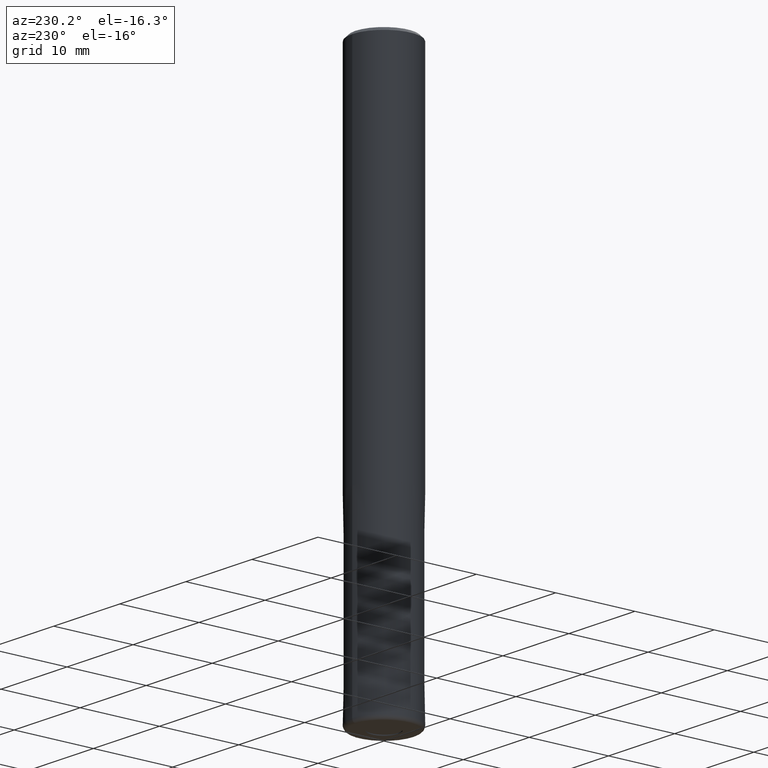
[diagram: clean part render]
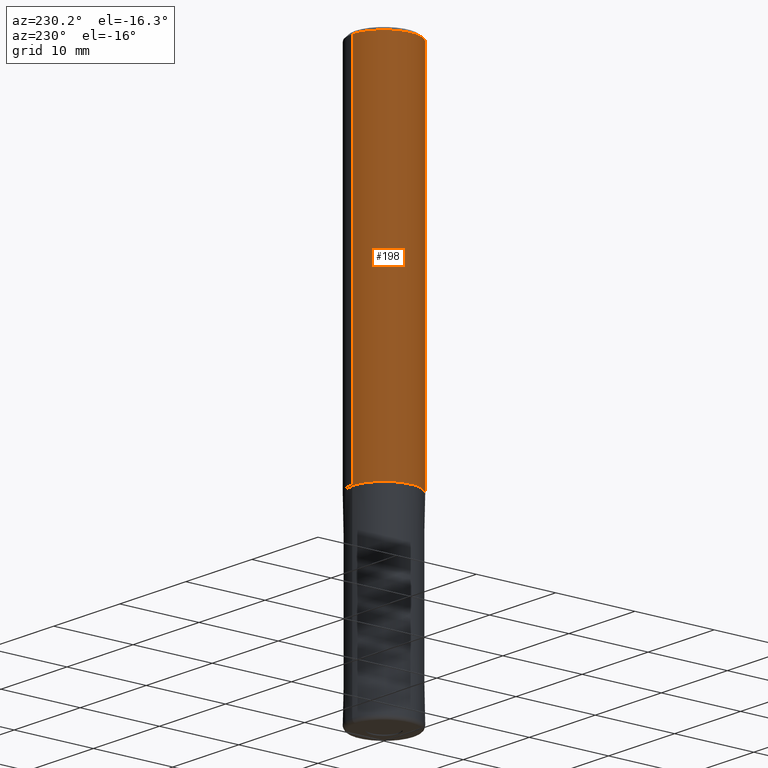
[diagram: same view with one face highlighted and labeled with its STEP entity id]
A machine part, auxiliary view. The second image highlights one B-rep face of the part: STEP entity #198.
In plain terms, the highlighted cylindrical surface (partial cylindrical patch) has radius 4 mm, axis along (-0, -0, 1).
Its self-contained STEP definition (entity closure, byte-faithful):
#106=VERTEX_POINT('',#267);
#120=VERTEX_POINT('',#283);
#134=EDGE_CURVE('',#170,#150,#300,.T.);
#136=EDGE_CURVE('',#106,#170,#302,.T.);
#150=VERTEX_POINT('',#318);
#152=EDGE_CURVE('',#120,#150,#320,.T.);
#170=VERTEX_POINT('',#342);
#196=EDGE_CURVE('',#120,#106,#369,.T.);
#198=ADVANCED_FACE('',(#371),#372,.T.);
#267=CARTESIAN_POINT('',(4.89842541528951E-016,-4.0,-0.399999999999999));
#283=CARTESIAN_POINT('',(4.89842541528951E-016,-4.0,-46.0));
#300=LINE('',#482,#483);
#302=CIRCLE('',#486,4.0);
#318=CARTESIAN_POINT('',(0.0,4.0,-46.0));
#320=CIRCLE('',#506,4.0);
#342=CARTESIAN_POINT('',(0.0,4.0,-0.399999999999999));
#369=LINE('',#568,#569);
#371=FACE_OUTER_BOUND('',#571,.T.);
#372=CYLINDRICAL_SURFACE('',#572,4.0);
#482=CARTESIAN_POINT('',(-4.89842541528951E-016,4.0,-23.2));
#483=VECTOR('',#686,1.0);
#486=AXIS2_PLACEMENT_3D('',#687,#688,#689);
#506=AXIS2_PLACEMENT_3D('',#711,#712,#713);
#568=CARTESIAN_POINT('',(4.89842541528951E-016,-4.0,-23.2));
#569=VECTOR('',#772,1.0);
#571=EDGE_LOOP('',(#774,#775,#776,#777));
#572=AXIS2_PLACEMENT_3D('',#778,#779,#780);
#686=DIRECTION('',(0.0,0.0,-1.0));
#687=CARTESIAN_POINT('',(0.0,0.0,-0.399999999999999));
#688=DIRECTION('',(0.0,0.0,-1.0));
#689=DIRECTION('',(0.0,1.0,0.0));
#711=CARTESIAN_POINT('',(0.0,0.0,-46.0));
#712=DIRECTION('',(0.0,0.0,-1.0));
#713=DIRECTION('',(0.0,1.0,0.0));
#772=DIRECTION('',(-0.0,-0.0,1.0));
#774=ORIENTED_EDGE('',*,*,#134,.T.);
#775=ORIENTED_EDGE('',*,*,#152,.F.);
#776=ORIENTED_EDGE('',*,*,#196,.T.);
#777=ORIENTED_EDGE('',*,*,#136,.T.);
#778=CARTESIAN_POINT('',(0.0,0.0,-23.2));
#779=DIRECTION('',(-0.0,-0.0,1.0));
#780=DIRECTION('',(0.0,1.0,0.0));